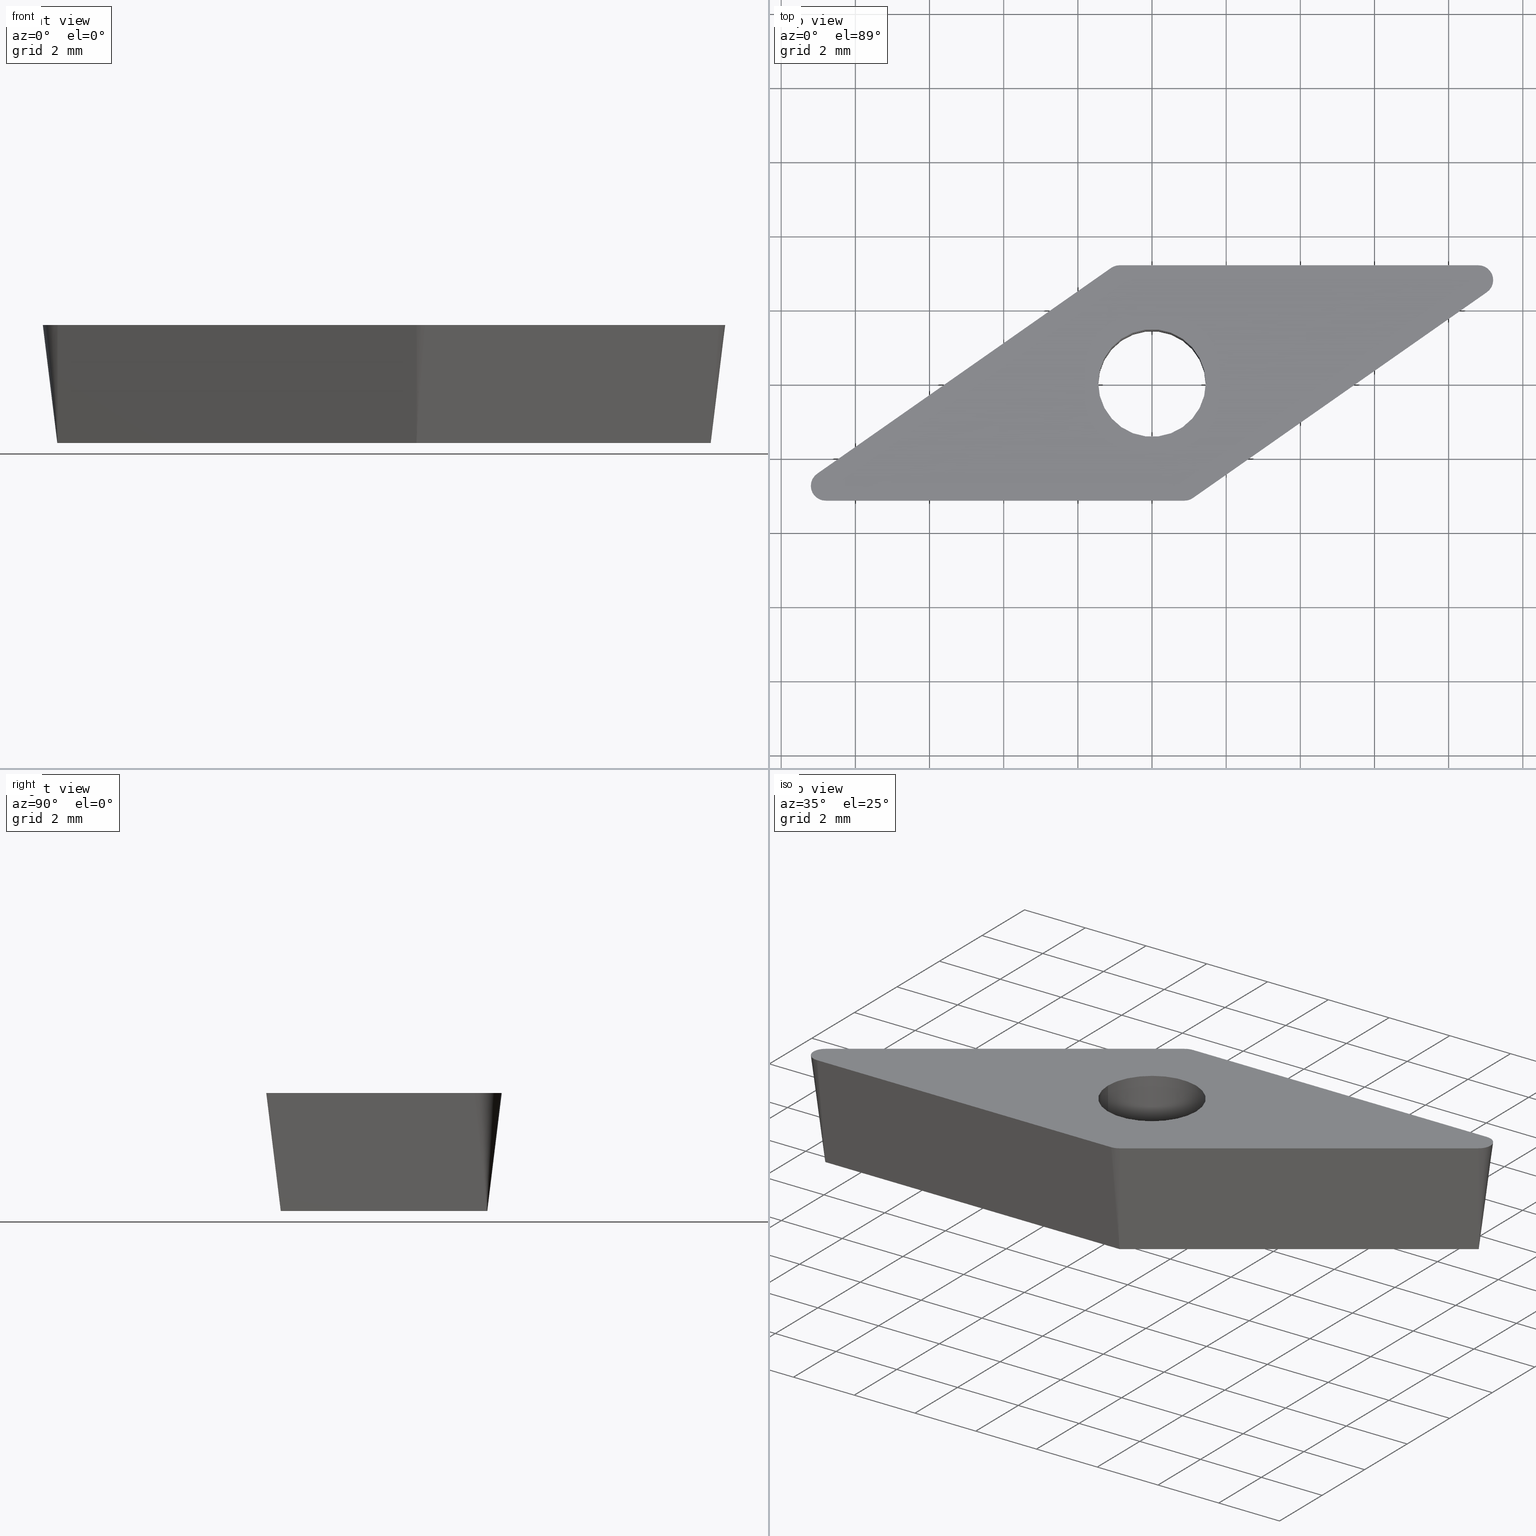
[diagram: canonical four-view strip — front | top / right | iso, engineering-drawing reading convention]
A machine part, canonical four-view strip (front | top / right | iso — engineering-drawing reading convention). The complete STEP part file that produces these views, byte-faithful:
ISO-10303-21;
HEADER;
FILE_DESCRIPTION (( 'STEP AP214' ),
    '1' );
FILE_NAME ('VC.. 110304.step',
    '2017-03-30T12:57:34',
    ( '' ),
    ( '' ),
    'SwSTEP 2.0',
    'SolidWorks 2016',
    '' );
FILE_SCHEMA (( 'AUTOMOTIVE_DESIGN' ));
ENDSEC;

DATA;
#1 =( NAMED_UNIT ( * ) PLANE_ANGLE_UNIT ( ) SI_UNIT ( $, .RADIAN. ) );
#2 = APPLICATION_CONTEXT ( 'automotive_design' ) ;
#3 =( LENGTH_UNIT ( ) NAMED_UNIT ( * ) SI_UNIT ( .MILLI., .METRE. ) );
#4 = SURFACE_STYLE_USAGE ( .BOTH. , #6 ) ;
#5 = VERTEX_POINT ( 'NONE', #285 ) ;
#6 = SURFACE_SIDE_STYLE ('',( #169 ) ) ;
#7 = FILL_AREA_STYLE ('',( #8 ) ) ;
#8 = FILL_AREA_STYLE_COLOUR ( '', #294 ) ;
#9 = ORIENTED_EDGE ( 'NONE', *, *, #356, .F. ) ;
#10 = DIRECTION ( 'NONE',  ( 0.06990138369076597000, -0.09982952178648431300, -0.9925461516413219800 ) ) ;
#11 =( NAMED_UNIT ( * ) SI_UNIT ( $, .STERADIAN. ) SOLID_ANGLE_UNIT ( ) );
#12 =( NAMED_UNIT ( * ) PLANE_ANGLE_UNIT ( ) SI_UNIT ( $, .RADIAN. ) );
#13 = ORIENTED_EDGE ( 'NONE', *, *, #461, .T. ) ;
#14 =( LENGTH_UNIT ( ) NAMED_UNIT ( * ) SI_UNIT ( .MILLI., .METRE. ) );
#15 = CARTESIAN_POINT ( 'NONE',  ( 0.0000000000000000000, 0.0000000000000000000, 0.0000000000000000000 ) ) ;
#16 = CARTESIAN_POINT ( 'NONE',  ( 0.8749541391391757500, -2.784545096328762300, -3.180000000000000200 ) ) ;
#17 = ORIENTED_EDGE ( 'NONE', *, *, #464, .F. ) ;
#18 = DIRECTION ( 'NONE',  ( 1.000000000000000000, 0.0000000000000000000, 0.0000000000000000000 ) ) ;
#19 = CARTESIAN_POINT ( 'NONE',  ( -2.350422432759885300, -2.784545096328762300, -3.180000000000000200 ) ) ;
#20 = VECTOR ( 'NONE', #267, 1000.000000000000000 ) ;
#21 = ORIENTED_EDGE ( 'NONE', *, *, #251, .T. ) ;
#22 = EDGE_CURVE ( 'NONE', #170, #138, #217, .T. ) ;
#23 = ORIENTED_EDGE ( 'NONE', *, *, #485, .F. ) ;
#24 = DIRECTION ( 'NONE',  ( 0.0000000000000000000, 0.0000000000000000000, -1.000000000000000000 ) ) ;
#25 = VERTEX_POINT ( 'NONE', #323 ) ;
#26 = ORIENTED_EDGE ( 'NONE', *, *, #477, .T. ) ;
#27 = CARTESIAN_POINT ( 'NONE',  ( 6.388532338624131100, 0.5973391822863098900, 0.0000000000000000000 ) ) ;
#28 = ORIENTED_EDGE ( 'NONE', *, *, #428, .T. ) ;
#29 =( NAMED_UNIT ( * ) SI_UNIT ( $, .STERADIAN. ) SOLID_ANGLE_UNIT ( ) );
#30 = CARTESIAN_POINT ( 'NONE',  ( 8.801175576557993100, 3.175000000000002000, 0.0000000000000000000 ) ) ;
#31 = VERTEX_POINT ( 'NONE', #266 ) ;
#32 = VERTEX_POINT ( 'NONE', #30 ) ;
#33 = CARTESIAN_POINT ( 'NONE',  ( -6.119785459984298000, -0.9811495013339721600, -3.815999999999999800 ) ) ;
#34 = ORIENTED_EDGE ( 'NONE', *, *, #355, .F. ) ;
#35 = CARTESIAN_POINT ( 'NONE',  ( -3.477711647505219000, 0.8688504986572684900, -3.815999999999999800 ) ) ;
#36 = ORIENTED_EDGE ( 'NONE', *, *, #434, .F. ) ;
#37 = CARTESIAN_POINT ( 'NONE',  ( 5.575799004658932700, 2.706454115594517000, -3.815999999999999800 ) ) ;
#38 = UNCERTAINTY_MEASURE_WITH_UNIT (LENGTH_MEASURE( 1.000000000000000100E-005 ), #275, 'distance_accuracy_value', 'NONE');
#39 = ORIENTED_EDGE ( 'NONE', *, *, #352, .T. ) ;
#40 = ORIENTED_EDGE ( 'NONE', *, *, #435, .T. ) ;
#41 = CARTESIAN_POINT ( 'NONE',  ( 0.0000000000000000000, 0.0000000000000000000, -3.180000000000000200 ) ) ;
#42 = EDGE_LOOP ( 'NONE', ( #183, #320, #185, #154 ) ) ;
#43 = DIRECTION ( 'NONE',  ( 1.000000000000000000, 0.0000000000000000000, 0.0000000000000000000 ) ) ;
#44 = PRESENTATION_STYLE_ASSIGNMENT (( #4 ) ) ;
#45 = AXIS2_PLACEMENT_3D ( 'NONE', #252, #134, #145 ) ;
#46 = DIRECTION ( 'NONE',  ( -0.0000000000000000000, -0.0000000000000000000, 1.000000000000000000 ) ) ;
#47 = CARTESIAN_POINT ( 'NONE',  ( 0.8749541391391761900, -2.774999999999999500, 0.0000000000000000000 ) ) ;
#48 = ORIENTED_EDGE ( 'NONE', *, *, #204, .T. ) ;
#49 = DIRECTION ( 'NONE',  ( -0.0000000000000000000, -0.0000000000000000000, 1.000000000000000000 ) ) ;
#50 = VERTEX_POINT ( 'NONE', #100 ) ;
#51 = ORIENTED_EDGE ( 'NONE', *, *, #483, .T. ) ;
#52 = DIRECTION ( 'NONE',  ( 0.0000000000000000000, 0.0000000000000000000, -1.000000000000000000 ) ) ;
#53 = CARTESIAN_POINT ( 'NONE',  ( 8.801175576557994900, 2.775000000000001700, -3.180000000000000200 ) ) ;
#54 = ORIENTED_EDGE ( 'NONE', *, *, #346, .T. ) ;
#55 = CARTESIAN_POINT ( 'NONE',  ( 6.164576606420595800, 0.9171811148312683000, -3.179999999999999700 ) ) ;
#56 = ORIENTED_EDGE ( 'NONE', *, *, #438, .T. ) ;
#57 = DIRECTION ( 'NONE',  ( 0.0000000000000000000, 0.0000000000000000000, -1.000000000000000000 ) ) ;
#58 = AXIS2_PLACEMENT_3D ( 'NONE', #289, #347, #345 ) ;
#59 = DIRECTION ( 'NONE',  ( -1.000000000000000000, 0.0000000000000000000, 0.0000000000000000000 ) ) ;
#60 = DIRECTION ( 'NONE',  ( -1.000000000000000000, 0.0000000000000000000, 0.0000000000000000000 ) ) ;
#61 = VERTEX_POINT ( 'NONE', #369 ) ;
#62 = DIRECTION ( 'NONE',  ( 0.0000000000000000000, 0.0000000000000000000, -1.000000000000000000 ) ) ;
#63 = ORIENTED_EDGE ( 'NONE', *, *, #387, .T. ) ;
#64 = CARTESIAN_POINT ( 'NONE',  ( -6.388532338628208700, -0.5973391822804898800, 0.0000000000000000000 ) ) ;
#65 = EDGE_CURVE ( 'NONE', #199, #25, #244, .T. ) ;
#66 = EDGE_LOOP ( 'NONE', ( #39, #40, #48, #51, #54, #56, #63, #68, #73 ) ) ;
#67 = DIRECTION ( 'NONE',  ( -1.000000000000000000, 0.0000000000000000000, 0.0000000000000000000 ) ) ;
#68 = ORIENTED_EDGE ( 'NONE', *, *, #110, .T. ) ;
#69 = DIRECTION ( 'NONE',  ( -1.000000000000000000, 0.0000000000000000000, 0.0000000000000000000 ) ) ;
#70 = DIRECTION ( 'NONE',  ( 2.864399321849623000E-017, -0.1218693434051477400, -0.9925461516413219800 ) ) ;
#71 = CARTESIAN_POINT ( 'NONE',  ( 0.0000000000000000000, 0.0000000000000000000, -3.180000000000000200 ) ) ;
#72 = CARTESIAN_POINT ( 'NONE',  ( -1.104384713679592800, 3.102660817715595400, 0.0000000000000000000 ) ) ;
#73 = ORIENTED_EDGE ( 'NONE', *, *, #415, .T. ) ;
#74 = CARTESIAN_POINT ( 'NONE',  ( 3.746458526155779900, -1.252660817720223400, 0.0000000000000000000 ) ) ;
#75 = ORIENTED_EDGE ( 'NONE', *, *, #414, .F. ) ;
#76 = ORIENTED_EDGE ( 'NONE', *, *, #458, .F. ) ;
#77 = CARTESIAN_POINT ( 'NONE',  ( 3.522502793952240600, -0.9328188851752681200, -3.179999999999999700 ) ) ;
#78 = ORIENTED_EDGE ( 'NONE', *, *, #312, .T. ) ;
#79 = DIRECTION ( 'NONE',  ( 0.0000000000000000000, 0.0000000000000000000, -1.000000000000000000 ) ) ;
#80 = CARTESIAN_POINT ( 'NONE',  ( 0.0000000000000000000, 0.0000000000000000000, -3.180000000000000200 ) ) ;
#81 = CARTESIAN_POINT ( 'NONE',  ( -3.746458526149465000, 1.252660817711216000, 0.0000000000000000000 ) ) ;
#82 = ORIENTED_EDGE ( 'NONE', *, *, #432, .T. ) ;
#83 = AXIS2_PLACEMENT_3D ( 'NONE', #71, #57, #257 ) ;
#84 = ORIENTED_EDGE ( 'NONE', *, *, #355, .T. ) ;
#85 = CARTESIAN_POINT ( 'NONE',  ( -3.522502793945926600, 0.9328188851662595500, -3.180000000000000600 ) ) ;
#86 = EDGE_LOOP ( 'NONE', ( #180, #225, #276, #368 ) ) ;
#87 = CARTESIAN_POINT ( 'NONE',  ( 8.806650418894873800, 2.767181114829359700, -3.180000000000000200 ) ) ;
#88 = DIRECTION ( 'NONE',  ( -0.0000000000000000000, -0.0000000000000000000, 1.000000000000000000 ) ) ;
#89 = AXIS2_PLACEMENT_3D ( 'NONE', #367, #366, #361 ) ;
#90 = CARTESIAN_POINT ( 'NONE',  ( 0.8749541391391761900, -2.774999999999999500, -3.180000000000000200 ) ) ;
#91 = AXIS2_PLACEMENT_3D ( 'NONE', #321, #88, #439 ) ;
#92 = DIRECTION ( 'NONE',  ( -1.000000000000000000, 0.0000000000000000000, 0.0000000000000000000 ) ) ;
#93 = CARTESIAN_POINT ( 'NONE',  ( -9.030606151098412600, -2.447339182284403100, 0.0000000000000000000 ) ) ;
#94 = DIRECTION ( 'NONE',  ( -1.000000000000000000, 0.0000000000000000000, 0.0000000000000000000 ) ) ;
#95 = CARTESIAN_POINT ( 'NONE',  ( -5.575799004658937200, -2.784545096328763700, -3.180000000000000200 ) ) ;
#96 = ORIENTED_EDGE ( 'NONE', *, *, #446, .F. ) ;
#97 = EDGE_LOOP ( 'NONE', ( #140, #141, #148, #151 ) ) ;
#98 = PRESENTATION_LAYER_ASSIGNMENT (  '', '', ( #115 ) ) ;
#99 = CARTESIAN_POINT ( 'NONE',  ( 3.477711647511532600, -0.8688504986662770600, -3.815999999999999800 ) ) ;
#100 = CARTESIAN_POINT ( 'NONE',  ( -0.8749541391391708600, 2.784545096328762300, -3.180000000000000200 ) ) ;
#101 = CARTESIAN_POINT ( 'NONE',  ( 2.350422432759891000, 2.706454115594514800, -3.815999999999999800 ) ) ;
#102 = ORIENTED_EDGE ( 'NONE', *, *, #412, .F. ) ;
#103 = VERTEX_POINT ( 'NONE', #119 ) ;
#104 = CARTESIAN_POINT ( 'NONE',  ( 8.806650418894873800, 2.767181114829359700, -3.180000000000000200 ) ) ;
#105 = ORIENTED_EDGE ( 'NONE', *, *, #435, .F. ) ;
#106 = CARTESIAN_POINT ( 'NONE',  ( 0.8804289814760549700, -2.782818885170637500, -3.180000000000000200 ) ) ;
#107 = ORIENTED_EDGE ( 'NONE', *, *, #358, .F. ) ;
#108 = ORIENTED_EDGE ( 'NONE', *, *, #251, .F. ) ;
#109 = DIRECTION ( 'NONE',  ( 1.000000000000000000, 0.0000000000000000000, 0.0000000000000000000 ) ) ;
#110 = EDGE_CURVE ( 'NONE', #164, #135, #478, .T. ) ;
#111 = DIRECTION ( 'NONE',  ( 0.0000000000000000000, 0.0000000000000000000, 1.000000000000000000 ) ) ;
#112 = ORIENTED_EDGE ( 'NONE', *, *, #484, .F. ) ;
#113 = ORIENTED_EDGE ( 'NONE', *, *, #485, .T. ) ;
#114 = ORIENTED_EDGE ( 'NONE', *, *, #387, .F. ) ;
#115 = STYLED_ITEM ( 'NONE', ( #445 ), #410 ) ;
#116 = ORIENTED_EDGE ( 'NONE', *, *, #431, .F. ) ;
#117 = CARTESIAN_POINT ( 'NONE',  ( -2.350422432759885300, -3.174999999999999800, 0.0000000000000000000 ) ) ;
#118 = CARTESIAN_POINT ( 'NONE',  ( 0.8749541391391757500, -3.174999999999999800, 0.0000000000000000000 ) ) ;
#119 = CARTESIAN_POINT ( 'NONE',  ( -0.8749541391391701900, 3.174999999999999800, 0.0000000000000000000 ) ) ;
#120 = DIRECTION ( 'NONE',  ( -1.000000000000000000, -3.252606517456518800E-015, 0.0000000000000000000 ) ) ;
#121 = EDGE_LOOP ( 'NONE', ( #113, #335, #411, #430 ) ) ;
#122 = ORIENTED_EDGE ( 'NONE', *, *, #464, .T. ) ;
#123 = CARTESIAN_POINT ( 'NONE',  ( -0.8749541391391700800, 2.774999999999999500, -3.180000000000000200 ) ) ;
#124 = ORIENTED_EDGE ( 'NONE', *, *, #461, .F. ) ;
#125 = ORIENTED_EDGE ( 'NONE', *, *, #301, .F. ) ;
#126 = FACE_OUTER_BOUND ( 'NONE', #42, .T. ) ;
#127 = EDGE_LOOP ( 'NONE', ( #209, #246 ) ) ;
#128 = ORIENTED_EDGE ( 'NONE', *, *, #415, .F. ) ;
#129 = CARTESIAN_POINT ( 'NONE',  ( 10.06981349750329200, 3.175000000000002500, 0.0000000000000000000 ) ) ;
#130 = AXIS2_PLACEMENT_3D ( 'NONE', #219, #218, #171 ) ;
#131 = VERTEX_POINT ( 'NONE', #207 ) ;
#132 = DIRECTION ( 'NONE',  ( 1.000000000000000000, 0.0000000000000000000, 0.0000000000000000000 ) ) ;
#133 = AXIS2_PLACEMENT_3D ( 'NONE', #223, #188, #187 ) ;
#134 = DIRECTION ( 'NONE',  ( -0.0000000000000000000, -0.0000000000000000000, 1.000000000000000000 ) ) ;
#135 = VERTEX_POINT ( 'NONE', #203 ) ;
#136 = DIRECTION ( 'NONE',  ( -1.432199660924811500E-017, 0.1218693434051477400, -0.9925461516413219800 ) ) ;
#137 = ORIENTED_EDGE ( 'NONE', *, *, #375, .F. ) ;
#138 = VERTEX_POINT ( 'NONE', #373 ) ;
#139 = DIRECTION ( 'NONE',  ( -0.0000000000000000000, -0.0000000000000000000, 1.000000000000000000 ) ) ;
#140 = ORIENTED_EDGE ( 'NONE', *, *, #349, .F. ) ;
#141 = ORIENTED_EDGE ( 'NONE', *, *, #477, .F. ) ;
#142 = DIRECTION ( 'NONE',  ( 0.0000000000000000000, 0.0000000000000000000, -1.000000000000000000 ) ) ;
#143 = CARTESIAN_POINT ( 'NONE',  ( -8.801175576557996600, -2.775000000000000800, -3.180000000000000200 ) ) ;
#144 =( GEOMETRIC_REPRESENTATION_CONTEXT ( 3 ) GLOBAL_UNCERTAINTY_ASSIGNED_CONTEXT ( ( #38 ) ) GLOBAL_UNIT_ASSIGNED_CONTEXT ( ( #275, #273, #271 ) ) REPRESENTATION_CONTEXT ( 'NONE', 'WORKASPACE' ) );
#145 = DIRECTION ( 'NONE',  ( -1.000000000000000000, 1.084202172485504400E-015, 0.0000000000000000000 ) ) ;
#146 = DIRECTION ( 'NONE',  ( -1.000000000000000000, 0.0000000000000000000, 0.0000000000000000000 ) ) ;
#147 = DIRECTION ( 'NONE',  ( -0.0000000000000000000, -0.0000000000000000000, 1.000000000000000000 ) ) ;
#148 = ORIENTED_EDGE ( 'NONE', *, *, #22, .F. ) ;
#149 = CARTESIAN_POINT ( 'NONE',  ( -0.8749541391391700800, 2.774999999999999500, 0.0000000000000000000 ) ) ;
#150 = CARTESIAN_POINT ( 'NONE',  ( 9.030606151098410800, 2.447339182284403100, 0.0000000000000000000 ) ) ;
#151 = ORIENTED_EDGE ( 'NONE', *, *, #346, .F. ) ;
#152 = CARTESIAN_POINT ( 'NONE',  ( 0.8356378350353475000, -2.718850498661646400, -3.815999999999999800 ) ) ;
#153 = VERTEX_POINT ( 'NONE', #398 ) ;
#154 = ORIENTED_EDGE ( 'NONE', *, *, #65, .F. ) ;
#155 = CONICAL_SURFACE ( 'NONE', #284, 0.3999999999999993000, 0.1221730476396033400 ) ;
#156 = EDGE_LOOP ( 'NONE', ( #75, #76, #82, #84 ) ) ;
#157 = MECHANICAL_DESIGN_GEOMETRIC_PRESENTATION_REPRESENTATION (  '', ( #115 ), #144 ) ;
#158 = VERTEX_POINT ( 'NONE', #401 ) ;
#159 = DIRECTION ( 'NONE',  ( -1.000000000000000000, 0.0000000000000000000, 0.0000000000000000000 ) ) ;
#160 = CARTESIAN_POINT ( 'NONE',  ( 0.0000000000000000000, 0.0000000000000000000, 0.0000000000000000000 ) ) ;
#161 = CARTESIAN_POINT ( 'NONE',  ( -8.801175576557996600, -2.775000000000000800, 0.0000000000000000000 ) ) ;
#162 = CARTESIAN_POINT ( 'NONE',  ( 5.575799004658932700, 2.784545096328764600, -3.180000000000000200 ) ) ;
#163 = VECTOR ( 'NONE', #300, 1000.000000000000100 ) ;
#164 = VERTEX_POINT ( 'NONE', #402 ) ;
#165 = ORIENTED_EDGE ( 'NONE', *, *, #65, .T. ) ;
#166 = CARTESIAN_POINT ( 'NONE',  ( 0.8749541391391757500, -3.174999999999999800, 0.0000000000000000000 ) ) ;
#167 = DIRECTION ( 'NONE',  ( -0.0000000000000000000, -0.0000000000000000000, 1.000000000000000000 ) ) ;
#168 = AXIS2_PLACEMENT_3D ( 'NONE', #231, #49, #146 ) ;
#169 = SURFACE_STYLE_FILL_AREA ( #7 ) ;
#170 = VERTEX_POINT ( 'NONE', #377 ) ;
#171 = DIRECTION ( 'NONE',  ( 1.000000000000000000, 0.0000000000000000000, 0.0000000000000000000 ) ) ;
#172 = CARTESIAN_POINT ( 'NONE',  ( -0.8804289814760550800, 2.782818885170638800, -3.180000000000000200 ) ) ;
#173 = EDGE_LOOP ( 'NONE', ( #449, #391, #78, #165 ) ) ;
#174 = CARTESIAN_POINT ( 'NONE',  ( 0.0000000000000000000, 0.0000000000000000000, 0.0000000000000000000 ) ) ;
#175 = CLOSED_SHELL ( 'NONE', ( #256, #475, #467, #249, #253, #381, #281, #480, #474, #476, #472, #388, #479 ) ) ;
#176 = EDGE_LOOP ( 'NONE', ( #405, #455, #9, #13, #17, #21, #23, #26, #28 ) ) ;
#177 = CARTESIAN_POINT ( 'NONE',  ( -8.801175576557996600, -3.175000000000001200, 0.0000000000000000000 ) ) ;
#178 = DIRECTION ( 'NONE',  ( 1.000000000000000000, 1.175192727644018400E-016, -0.0000000000000000000 ) ) ;
#179 = AXIS2_PLACEMENT_3D ( 'NONE', #123, #79, #92 ) ;
#180 = ORIENTED_EDGE ( 'NONE', *, *, #420, .F. ) ;
#181 = EDGE_LOOP ( 'NONE', ( #296, #260, #338, #425 ) ) ;
#182 = CIRCLE ( 'NONE', #270, 0.3999999999999993000 ) ;
#183 = ORIENTED_EDGE ( 'NONE', *, *, #428, .F. ) ;
#184 = DIRECTION ( 'NONE',  ( 1.000000000000000000, 0.0000000000000000000, 0.0000000000000000000 ) ) ;
#185 = ORIENTED_EDGE ( 'NONE', *, *, #483, .F. ) ;
#186 = DIRECTION ( 'NONE',  ( 0.0000000000000000000, 0.0000000000000000000, 1.000000000000000000 ) ) ;
#187 = DIRECTION ( 'NONE',  ( -1.000000000000000000, 0.0000000000000000000, 0.0000000000000000000 ) ) ;
#188 = DIRECTION ( 'NONE',  ( -0.0000000000000000000, -0.0000000000000000000, 1.000000000000000000 ) ) ;
#189 = VERTEX_POINT ( 'NONE', #390 ) ;
#190 = VERTEX_POINT ( 'NONE', #406 ) ;
#191 = CARTESIAN_POINT ( 'NONE',  ( -0.8749541391391700800, 2.774999999999999500, 0.0000000000000000000 ) ) ;
#192 = CARTESIAN_POINT ( 'NONE',  ( 1.001073654690764100, -3.174999999999999800, 0.0000000000000000000 ) ) ;
#193 = EDGE_LOOP ( 'NONE', ( #108, #112, #114, #116 ) ) ;
#194 = CONICAL_SURFACE ( 'NONE', #288, 0.3999999999999999700, 0.1221730476396033400 ) ;
#195 = VERTEX_POINT ( 'NONE', #423 ) ;
#196 = EDGE_LOOP ( 'NONE', ( #96, #102, #105, #107 ) ) ;
#197 = CONICAL_SURFACE ( 'NONE', #91, 0.3999999999999993000, 0.1221730476396033400 ) ;
#198 = AXIS2_PLACEMENT_3D ( 'NONE', #149, #147, #94 ) ;
#199 = VERTEX_POINT ( 'NONE', #404 ) ;
#200 = EDGE_LOOP ( 'NONE', ( #328, #334, #122, #379 ) ) ;
#201 = VERTEX_POINT ( 'NONE', #172 ) ;
#202 = DIRECTION ( 'NONE',  ( 0.0000000000000000000, 0.0000000000000000000, 1.000000000000000000 ) ) ;
#203 = CARTESIAN_POINT ( 'NONE',  ( 9.030606151098410800, 2.447339182284403500, 0.0000000000000000000 ) ) ;
#204 = EDGE_CURVE ( 'NONE', #61, #25, #213, .T. ) ;
#205 = DIRECTION ( 'NONE',  ( -0.06990138369076597000, 0.09982952178648431300, 0.9925461516413219800 ) ) ;
#206 = VERTEX_POINT ( 'NONE', #104 ) ;
#207 = CARTESIAN_POINT ( 'NONE',  ( 1.450000000000000000, 0.0000000000000000000, -3.180000000000000200 ) ) ;
#208 = CARTESIAN_POINT ( 'NONE',  ( -8.801175576557996600, -3.175000000000001200, 0.0000000000000000000 ) ) ;
#209 = ORIENTED_EDGE ( 'NONE', *, *, #458, .T. ) ;
#210 = EDGE_LOOP ( 'NONE', ( #124, #125, #128, #137 ) ) ;
#211 = CARTESIAN_POINT ( 'NONE',  ( 8.801175576557993100, 2.706454115594517000, -3.815999999999999800 ) ) ;
#212 = EDGE_LOOP ( 'NONE', ( #34, #36 ) ) ;
#213 = LINE ( 'NONE', #306, #163 ) ;
#214 = AXIS2_PLACEMENT_3D ( 'NONE', #47, #46, #69 ) ;
#215 = CARTESIAN_POINT ( 'NONE',  ( -8.761859272454168800, -2.831149501338350700, -3.815999999999999800 ) ) ;
#216 = CARTESIAN_POINT ( 'NONE',  ( 1.450000000000000000, 0.0000000000000000000, -3.180000000000000200 ) ) ;
#217 = LINE ( 'NONE', #177, #255 ) ;
#218 = DIRECTION ( 'NONE',  ( 0.0000000000000000000, 0.0000000000000000000, 1.000000000000000000 ) ) ;
#219 = CARTESIAN_POINT ( 'NONE',  ( 0.0000000000000000000, 0.0000000000000000000, -3.180000000000000200 ) ) ;
#220 = B_SPLINE_SURFACE_WITH_KNOTS ( 'NONE', 1, 3, ( 
 ( #447, #395, #450, #448 ),
 ( #211, #37, #101, #471 ) ),
 .UNSPECIFIED., .F., .F., .F.,
 ( 2, 2 ),
 ( 4, 4 ),
 ( 0.0000000000000000000, 1.000000000000000000 ),
 ( -0.009802249231248758700, -0.0001261195155515939900 ),
 .UNSPECIFIED. ) ;
#221 = AXIS2_PLACEMENT_3D ( 'NONE', #53, #52, #59 ) ;
#222 = DIRECTION ( 'NONE',  ( -1.000000000000000000, 0.0000000000000000000, 0.0000000000000000000 ) ) ;
#223 = CARTESIAN_POINT ( 'NONE',  ( 8.801175576557994900, 2.775000000000001700, 0.0000000000000000000 ) ) ;
#224 = AXIS2_PLACEMENT_3D ( 'NONE', #80, #111, #109 ) ;
#225 = ORIENTED_EDGE ( 'NONE', *, *, #414, .T. ) ;
#226 = CARTESIAN_POINT ( 'NONE',  ( -9.030606151098412600, -2.447339182284403100, 0.0000000000000000000 ) ) ;
#227 = DIRECTION ( 'NONE',  ( 1.432199660924811500E-017, -0.1218693434051477400, 0.9925461516413219800 ) ) ;
#228 = CARTESIAN_POINT ( 'NONE',  ( -0.8356378350353475000, 2.718850498661647700, -3.815999999999999800 ) ) ;
#229 = FACE_OUTER_BOUND ( 'NONE', #66, .T. ) ;
#230 = PRODUCT_DEFINITION_SHAPE ( 'NONE', 'NONE',  #326 ) ;
#231 = CARTESIAN_POINT ( 'NONE',  ( 8.801175576557994900, 2.775000000000001700, 0.0000000000000000000 ) ) ;
#232 = DIRECTION ( 'NONE',  ( 0.0000000000000000000, 0.0000000000000000000, 1.000000000000000000 ) ) ;
#233 = CIRCLE ( 'NONE', #287, 0.009545096328762367500 ) ;
#234 = VECTOR ( 'NONE', #70, 1000.000000000000000 ) ;
#235 = PLANE ( 'NONE',  #83 ) ;
#236 = DIRECTION ( 'NONE',  ( 0.0000000000000000000, 0.0000000000000000000, 1.000000000000000000 ) ) ;
#237 = DIRECTION ( 'NONE',  ( 0.0000000000000000000, 0.0000000000000000000, 1.000000000000000000 ) ) ;
#238 = CONICAL_SURFACE ( 'NONE', #214, 0.4000000000000000200, 0.1221730476396033400 ) ;
#239 = CARTESIAN_POINT ( 'NONE',  ( -1.450000000000000000, 1.775737858763661700E-016, -3.180000000000000200 ) ) ;
#240 = AXIS2_PLACEMENT_3D ( 'NONE', #174, #186, #184 ) ;
#241 = CARTESIAN_POINT ( 'NONE',  ( 1.450000000000000000, 0.0000000000000000000, 0.0000000000000000000 ) ) ;
#242 = CARTESIAN_POINT ( 'NONE',  ( -5.575799004658937200, -3.175000000000001200, 0.0000000000000000000 ) ) ;
#243 = CARTESIAN_POINT ( 'NONE',  ( -8.801175576557996600, -2.706454115594516100, -3.815999999999999800 ) ) ;
#244 = LINE ( 'NONE', #93, #327 ) ;
#245 = APPLICATION_PROTOCOL_DEFINITION ( 'draft international standard', 'automotive_design', 1998, #292 ) ;
#246 = ORIENTED_EDGE ( 'NONE', *, *, #420, .T. ) ;
#247 = CARTESIAN_POINT ( 'NONE',  ( -0.8749541391391708600, 2.784545096328762300, -3.180000000000000200 ) ) ;
#248 = CARTESIAN_POINT ( 'NONE',  ( -0.8804289814760550800, 2.782818885170638800, -3.180000000000000200 ) ) ;
#249 = ADVANCED_FACE ( 'NONE', ( #279 ), #220, .T. ) ;
#250 = AXIS2_PLACEMENT_3D ( 'NONE', #143, #142, #159 ) ;
#251 = EDGE_CURVE ( 'NONE', #190, #158, #378, .T. ) ;
#252 = CARTESIAN_POINT ( 'NONE',  ( 0.8749541391391761900, -2.774999999999999500, 0.0000000000000000000 ) ) ;
#253 = ADVANCED_FACE ( 'NONE', ( #413 ), #460, .T. ) ;
#254 = AXIS2_PLACEMENT_3D ( 'NONE', #258, #236, #18 ) ;
#255 = VECTOR ( 'NONE', #136, 1000.000000000000000 ) ;
#256 = ADVANCED_FACE ( 'NONE', ( #126 ), #197, .T. ) ;
#257 = DIRECTION ( 'NONE',  ( -1.000000000000000000, 0.0000000000000000000, -0.0000000000000000000 ) ) ;
#258 = CARTESIAN_POINT ( 'NONE',  ( 0.0000000000000000000, 0.0000000000000000000, -3.180000000000000200 ) ) ;
#259 = APPLICATION_PROTOCOL_DEFINITION ( 'draft international standard', 'automotive_design', 1998, #437 ) ;
#260 = ORIENTED_EDGE ( 'NONE', *, *, #358, .T. ) ;
#261 = AXIS2_PLACEMENT_3D ( 'NONE', #41, #232, #43 ) ;
#262 = CARTESIAN_POINT ( 'NONE',  ( -5.575799004658937200, -2.706454115594516100, -3.815999999999999800 ) ) ;
#263 = CARTESIAN_POINT ( 'NONE',  ( -2.350422432759885300, -2.706454115594514800, -3.815999999999999800 ) ) ;
#264 = CARTESIAN_POINT ( 'NONE',  ( 0.8749541391391756400, -2.706454115594514800, -3.815999999999999800 ) ) ;
#265 = AXIS2_PLACEMENT_3D ( 'NONE', #463, #62, #316 ) ;
#266 = CARTESIAN_POINT ( 'NONE',  ( -9.201175576557997000, -2.775000000000000800, 0.0000000000000000000 ) ) ;
#267 = DIRECTION ( 'NONE',  ( 0.8191520442889946900, 0.5735764363510419400, -0.0000000000000000000 ) ) ;
#268 = CARTESIAN_POINT ( 'NONE',  ( -1.104384713679592800, 3.102660817715595400, 0.0000000000000000000 ) ) ;
#269 = LINE ( 'NONE', #341, #286 ) ;
#270 = AXIS2_PLACEMENT_3D ( 'NONE', #161, #167, #120 ) ;
#271 =( NAMED_UNIT ( * ) SI_UNIT ( $, .STERADIAN. ) SOLID_ANGLE_UNIT ( ) );
#272 = FACE_OUTER_BOUND ( 'NONE', #86, .T. ) ;
#273 =( NAMED_UNIT ( * ) PLANE_ANGLE_UNIT ( ) SI_UNIT ( $, .RADIAN. ) );
#274 = CYLINDRICAL_SURFACE ( 'NONE', #254, 1.450000000000000000 ) ;
#275 =( LENGTH_UNIT ( ) NAMED_UNIT ( * ) SI_UNIT ( .MILLI., .METRE. ) );
#276 = ORIENTED_EDGE ( 'NONE', *, *, #434, .T. ) ;
#277 = SURFACE_STYLE_USAGE ( .BOTH. , #278 ) ;
#278 = SURFACE_SIDE_STYLE ('',( #441 ) ) ;
#279 = FACE_OUTER_BOUND ( 'NONE', #181, .T. ) ;
#280 = FILL_AREA_STYLE ('',( #282 ) ) ;
#281 = ADVANCED_FACE ( 'NONE', ( #333, #363 ), #235, .T. ) ;
#282 = FILL_AREA_STYLE_COLOUR ( '', #443 ) ;
#283 = CARTESIAN_POINT ( 'NONE',  ( 9.030606151098410800, 2.447339182284403100, 0.0000000000000000000 ) ) ;
#284 = AXIS2_PLACEMENT_3D ( 'NONE', #453, #452, #60 ) ;
#285 = CARTESIAN_POINT ( 'NONE',  ( 0.8749541391391761900, -3.174999999999999800, 0.0000000000000000000 ) ) ;
#286 = VECTOR ( 'NONE', #319, 1000.000000000000000 ) ;
#287 = AXIS2_PLACEMENT_3D ( 'NONE', #454, #330, #456 ) ;
#288 = AXIS2_PLACEMENT_3D ( 'NONE', #191, #139, #222 ) ;
#289 = CARTESIAN_POINT ( 'NONE',  ( 0.0000000000000000000, 0.0000000000000000000, 0.0000000000000000000 ) ) ;
#290 = FACE_OUTER_BOUND ( 'NONE', #97, .T. ) ;
#291 = PRESENTATION_LAYER_ASSIGNMENT (  '', '', ( #302 ) ) ;
#292 = APPLICATION_CONTEXT ( 'automotive_design' ) ;
#293 = VECTOR ( 'NONE', #307, 1000.000000000000000 ) ;
#294 = COLOUR_RGB ( '',0.7960784313725489700, 0.8235294117647058400, 0.9372549019607843100 ) ;
#295 = DIRECTION ( 'NONE',  ( 0.0000000000000000000, 0.0000000000000000000, 1.000000000000000000 ) ) ;
#296 = ORIENTED_EDGE ( 'NONE', *, *, #356, .T. ) ;
#297 = FACE_BOUND ( 'NONE', #212, .T. ) ;
#298 = CARTESIAN_POINT ( 'NONE',  ( 8.801175576557993100, 2.784545096328764600, -3.180000000000000200 ) ) ;
#299 = FACE_OUTER_BOUND ( 'NONE', #156, .T. ) ;
#300 = DIRECTION ( 'NONE',  ( -0.8191520442889948000, -0.5735764363510417200, -0.0000000000000000000 ) ) ;
#301 = EDGE_CURVE ( 'NONE', #32, #153, #317, .T. ) ;
#302 = STYLED_ITEM ( 'NONE', ( #44 ), #364 ) ;
#303 = CARTESIAN_POINT ( 'NONE',  ( 2.350422432759891000, 2.784545096328762300, -3.180000000000000200 ) ) ;
#304 = CARTESIAN_POINT ( 'NONE',  ( -6.164576606424949600, -0.9171811148250583700, -3.180000000000000600 ) ) ;
#305 = AXIS2_PLACEMENT_3D ( 'NONE', #160, #444, #424 ) ;
#306 = CARTESIAN_POINT ( 'NONE',  ( -10.06981349750329400, -3.175000000000001200, 0.0000000000000000000 ) ) ;
#307 = DIRECTION ( 'NONE',  ( -0.1218693434051477400, 0.0000000000000000000, 0.9925461516413219800 ) ) ;
#308 = PRODUCT_DEFINITION_CONTEXT ( 'detailed design', #437, 'design' ) ;
#309 = CARTESIAN_POINT ( 'NONE',  ( -8.806650418894875500, -2.767181114829359700, -3.180000000000000200 ) ) ;
#310 = CARTESIAN_POINT ( 'NONE',  ( -9.201175576557997000, -2.775000000000000800, 0.0000000000000000000 ) ) ;
#311 = CARTESIAN_POINT ( 'NONE',  ( -0.8749541391391709700, 3.174999999999999800, 0.0000000000000000000 ) ) ;
#312 = EDGE_CURVE ( 'NONE', #201, #199, #436, .T. ) ;
#313 = B_SPLINE_CURVE_WITH_KNOTS ( 'NONE', 3,
 ( #342, #95, #19, #16 ),
 .UNSPECIFIED., .F., .F.,
 ( 4, 4 ),
 ( 0.0000000000000000000, 0.009676129715697173700 ),
 .UNSPECIFIED. ) ;
#314 = CARTESIAN_POINT ( 'NONE',  ( 6.119785459979888200, 0.9811495013402600200, -3.815999999999999800 ) ) ;
#315 = CARTESIAN_POINT ( 'NONE',  ( 8.761859272454165300, 2.831149501338350700, -3.815999999999999800 ) ) ;
#316 = DIRECTION ( 'NONE',  ( -1.000000000000000000, 0.0000000000000000000, -0.0000000000000000000 ) ) ;
#317 = LINE ( 'NONE', #331, #234 ) ;
#318 = PLANE ( 'NONE',  #265 ) ;
#319 = DIRECTION ( 'NONE',  ( -0.06990138369076601100, 0.09982952178648428500, -0.9925461516413219800 ) ) ;
#320 = ORIENTED_EDGE ( 'NONE', *, *, #349, .T. ) ;
#321 = CARTESIAN_POINT ( 'NONE',  ( -8.801175576557996600, -2.775000000000000800, 0.0000000000000000000 ) ) ;
#322 = CYLINDRICAL_SURFACE ( 'NONE', #261, 1.450000000000000000 ) ;
#323 = CARTESIAN_POINT ( 'NONE',  ( -9.030606151098412600, -2.447339182284403100, 0.0000000000000000000 ) ) ;
#324 = FACE_OUTER_BOUND ( 'NONE', #196, .T. ) ;
#325 = UNCERTAINTY_MEASURE_WITH_UNIT (LENGTH_MEASURE( 1.000000000000000100E-005 ), #3, 'distance_accuracy_value', 'NONE');
#326 = PRODUCT_DEFINITION ( 'UNKNOWN', '', #384, #357 ) ;
#327 = VECTOR ( 'NONE', #205, 1000.000000000000000 ) ;
#328 = ORIENTED_EDGE ( 'NONE', *, *, #110, .F. ) ;
#329 =( GEOMETRIC_REPRESENTATION_CONTEXT ( 3 ) GLOBAL_UNCERTAINTY_ASSIGNED_CONTEXT ( ( #325 ) ) GLOBAL_UNIT_ASSIGNED_CONTEXT ( ( #3, #1, #29 ) ) REPRESENTATION_CONTEXT ( 'NONE', 'WORKASPACE' ) );
#330 = DIRECTION ( 'NONE',  ( 0.0000000000000000000, 0.0000000000000000000, -1.000000000000000000 ) ) ;
#331 = CARTESIAN_POINT ( 'NONE',  ( 8.801175576557993100, 3.175000000000002000, 0.0000000000000000000 ) ) ;
#332 = MECHANICAL_DESIGN_GEOMETRIC_PRESENTATION_REPRESENTATION (  '', ( #302 ), #329 ) ;
#333 = FACE_BOUND ( 'NONE', #127, .T. ) ;
#334 = ORIENTED_EDGE ( 'NONE', *, *, #484, .T. ) ;
#335 = ORIENTED_EDGE ( 'NONE', *, *, #431, .T. ) ;
#336 =( GEOMETRIC_REPRESENTATION_CONTEXT ( 3 ) GLOBAL_UNCERTAINTY_ASSIGNED_CONTEXT ( ( #421 ) ) GLOBAL_UNIT_ASSIGNED_CONTEXT ( ( #14, #12, #11 ) ) REPRESENTATION_CONTEXT ( 'NONE', 'WORKASPACE' ) );
#337 = PRODUCT_DEFINITION_FORMATION_WITH_SPECIFIED_SOURCE ( 'ANY', '', #343, .NOT_KNOWN. ) ;
#338 = ORIENTED_EDGE ( 'NONE', *, *, #352, .F. ) ;
#339 = PRODUCT_CONTEXT ( 'NONE', #348, 'mechanical' ) ;
#340 = AXIS2_PLACEMENT_3D ( 'NONE', #90, #24, #67 ) ;
#341 = CARTESIAN_POINT ( 'NONE',  ( 1.104384713679592800, -3.102660817715594100, 0.0000000000000000000 ) ) ;
#342 = CARTESIAN_POINT ( 'NONE',  ( -8.801175576557996600, -2.784545096328763700, -3.180000000000000200 ) ) ;
#343 = PRODUCT ( 'VC.. 110304', 'VC.. 110304', '', ( #462 ) ) ;
#344 = DIRECTION ( 'NONE',  ( 0.06990138369076601100, -0.09982952178648428500, 0.9925461516413219800 ) ) ;
#345 = DIRECTION ( 'NONE',  ( 1.000000000000000000, 0.0000000000000000000, 0.0000000000000000000 ) ) ;
#346 = EDGE_CURVE ( 'NONE', #31, #170, #353, .T. ) ;
#347 = DIRECTION ( 'NONE',  ( 0.0000000000000000000, 0.0000000000000000000, 1.000000000000000000 ) ) ;
#348 = APPLICATION_CONTEXT ( 'automotive_design' ) ;
#349 = EDGE_CURVE ( 'NONE', #195, #31, #451, .T. ) ;
#350 = PRODUCT_DEFINITION ( 'UNKNOWN', '', #337, #308 ) ;
#351 = PRODUCT ( 'VC.. 110304', 'VC.. 110304', '', ( #339 ) ) ;
#352 = EDGE_CURVE ( 'NONE', #32, #103, #427, .T. ) ;
#353 = CIRCLE ( 'NONE', #89, 0.3999999999999993000 ) ;
#354 = FACE_OUTER_BOUND ( 'NONE', #193, .T. ) ;
#355 = EDGE_CURVE ( 'NONE', #372, #189, #482, .T. ) ;
#356 = EDGE_CURVE ( 'NONE', #153, #50, #409, .T. ) ;
#357 = PRODUCT_DEFINITION_CONTEXT ( 'detailed design', #292, 'design' ) ;
#358 = EDGE_CURVE ( 'NONE', #50, #103, #470, .T. ) ;
#359 = DIRECTION ( 'NONE',  ( -2.864399321849623000E-017, 0.1218693434051477400, 0.9925461516413219800 ) ) ;
#360 = CARTESIAN_POINT ( 'NONE',  ( -1.450000000000000000, 1.775737858763661700E-016, -3.180000000000000200 ) ) ;
#361 = DIRECTION ( 'NONE',  ( -1.000000000000000000, 0.0000000000000000000, 0.0000000000000000000 ) ) ;
#362 = FACE_OUTER_BOUND ( 'NONE', #173, .T. ) ;
#363 = FACE_OUTER_BOUND ( 'NONE', #176, .T. ) ;
#364 = ADVANCED_BREP_SHAPE_REPRESENTATION ( 'VC.. 110304', ( #410, #416 ), #336 ) ;
#365 = CIRCLE ( 'NONE', #221, 0.009545096328762367500 ) ;
#366 = DIRECTION ( 'NONE',  ( -0.0000000000000000000, -0.0000000000000000000, 1.000000000000000000 ) ) ;
#367 = CARTESIAN_POINT ( 'NONE',  ( -8.801175576557996600, -2.775000000000000800, 0.0000000000000000000 ) ) ;
#368 = ORIENTED_EDGE ( 'NONE', *, *, #432, .F. ) ;
#369 = CARTESIAN_POINT ( 'NONE',  ( -1.104384713679589200, 3.102660817715597200, 0.0000000000000000000 ) ) ;
#370 = VERTEX_POINT ( 'NONE', #360 ) ;
#371 = VECTOR ( 'NONE', #178, 1000.000000000000000 ) ;
#372 = VERTEX_POINT ( 'NONE', #241 ) ;
#373 = CARTESIAN_POINT ( 'NONE',  ( -8.801175576557996600, -2.784545096328763700, -3.180000000000000200 ) ) ;
#374 = CIRCLE ( 'NONE', #179, 0.009545096328762584300 ) ;
#375 = EDGE_CURVE ( 'NONE', #206, #135, #459, .T. ) ;
#376 = LINE ( 'NONE', #192, #371 ) ;
#377 = CARTESIAN_POINT ( 'NONE',  ( -8.801175576557996600, -3.175000000000001200, 0.0000000000000000000 ) ) ;
#378 = CIRCLE ( 'NONE', #340, 0.009545096328762584300 ) ;
#379 = ORIENTED_EDGE ( 'NONE', *, *, #375, .T. ) ;
#380 = B_SPLINE_SURFACE_WITH_KNOTS ( 'NONE', 1, 3, ( 
 ( #208, #242, #117, #118 ),
 ( #243, #262, #263, #264 ) ),
 .UNSPECIFIED., .F., .F., .F.,
 ( 2, 2 ),
 ( 4, 4 ),
 ( 0.0000000000000000000, 1.000000000000000000 ),
 ( -0.009802249231248762200, -0.0001261195155515880200 ),
 .UNSPECIFIED. ) ;
#381 = ADVANCED_FACE ( 'NONE', ( #486 ), #380, .T. ) ;
#382 = PRODUCT_RELATED_PRODUCT_CATEGORY ( 'part', '', ( #351 ) ) ;
#383 = CIRCLE ( 'NONE', #198, 0.3999999999999999700 ) ;
#384 = PRODUCT_DEFINITION_FORMATION_WITH_SPECIFIED_SOURCE ( 'ANY', '', #351, .NOT_KNOWN. ) ;
#385 = VECTOR ( 'NONE', #202, 1000.000000000000000 ) ;
#386 = PRODUCT_RELATED_PRODUCT_CATEGORY ( 'part', '', ( #343 ) ) ;
#387 = EDGE_CURVE ( 'NONE', #5, #164, #473, .T. ) ;
#388 = ADVANCED_FACE ( 'NONE', ( #466 ), #440, .T. ) ;
#389 = CIRCLE ( 'NONE', #240, 1.450000000000000000 ) ;
#390 = CARTESIAN_POINT ( 'NONE',  ( -1.450000000000000000, 1.775737858763661700E-016, 0.0000000000000000000 ) ) ;
#391 = ORIENTED_EDGE ( 'NONE', *, *, #412, .T. ) ;
#392 = VECTOR ( 'NONE', #227, 1000.000000000000000 ) ;
#393 = LINE ( 'NONE', #216, #385 ) ;
#394 = LINE ( 'NONE', #166, #392 ) ;
#395 = CARTESIAN_POINT ( 'NONE',  ( 5.575799004658932700, 3.175000000000002000, 0.0000000000000000000 ) ) ;
#396 = B_SPLINE_SURFACE_WITH_KNOTS ( 'NONE', 1, 3, ( 
 ( #72, #81, #64, #226 ),
 ( #228, #35, #33, #215 ) ),
 .UNSPECIFIED., .F., .F., .F.,
 ( 2, 2 ),
 ( 4, 4 ),
 ( 0.0000000000000000000, 1.000000000000000000 ),
 ( -0.01094476763664246200, -0.001268637920945297400 ),
 .UNSPECIFIED. ) ;
#397 = APPLICATION_PROTOCOL_DEFINITION ( 'draft international standard', 'automotive_design', 1998, #2 ) ;
#398 = CARTESIAN_POINT ( 'NONE',  ( 8.801175576557993100, 2.784545096328764600, -3.180000000000000200 ) ) ;
#399 = CIRCLE ( 'NONE', #224, 1.450000000000000000 ) ;
#400 = B_SPLINE_CURVE_WITH_KNOTS ( 'NONE', 3,
 ( #106, #77, #55, #87 ),
 .UNSPECIFIED., .F., .F.,
 ( 4, 4 ),
 ( 0.0000000000000000000, 0.009676129715697161600 ),
 .UNSPECIFIED. ) ;
#401 = CARTESIAN_POINT ( 'NONE',  ( 0.8749541391391757500, -2.784545096328762300, -3.180000000000000200 ) ) ;
#402 = CARTESIAN_POINT ( 'NONE',  ( 1.104384713679592800, -3.102660817715595000, 0.0000000000000000000 ) ) ;
#403 = CIRCLE ( 'NONE', #130, 1.450000000000000000 ) ;
#404 = CARTESIAN_POINT ( 'NONE',  ( -8.806650418894875500, -2.767181114829359700, -3.180000000000000200 ) ) ;
#405 = ORIENTED_EDGE ( 'NONE', *, *, #312, .F. ) ;
#406 = CARTESIAN_POINT ( 'NONE',  ( 0.8804289814760549700, -2.782818885170637500, -3.180000000000000200 ) ) ;
#407 = VECTOR ( 'NONE', #237, 1000.000000000000000 ) ;
#408 = DIRECTION ( 'NONE',  ( -1.000000000000000000, -2.350385455288036700E-016, -0.0000000000000000000 ) ) ;
#409 = B_SPLINE_CURVE_WITH_KNOTS ( 'NONE', 3,
 ( #298, #162, #303, #247 ),
 .UNSPECIFIED., .F., .F.,
 ( 4, 4 ),
 ( 0.0000000000000000000, 0.009676129715697165100 ),
 .UNSPECIFIED. ) ;
#410 = MANIFOLD_SOLID_BREP ( 'Formschr�ge1', #175 ) ;
#411 = ORIENTED_EDGE ( 'NONE', *, *, #438, .F. ) ;
#412 = EDGE_CURVE ( 'NONE', #61, #201, #419, .T. ) ;
#413 = FACE_OUTER_BOUND ( 'NONE', #200, .T. ) ;
#414 = EDGE_CURVE ( 'NONE', #370, #189, #422, .T. ) ;
#415 = EDGE_CURVE ( 'NONE', #135, #32, #465, .T. ) ;
#416 = AXIS2_PLACEMENT_3D ( 'NONE', #15, #295, #132 ) ;
#417 = CIRCLE ( 'NONE', #250, 0.009545096328762367500 ) ;
#418 = VECTOR ( 'NONE', #10, 1000.000000000000000 ) ;
#419 = LINE ( 'NONE', #268, #418 ) ;
#420 = EDGE_CURVE ( 'NONE', #370, #131, #403, .T. ) ;
#421 = UNCERTAINTY_MEASURE_WITH_UNIT (LENGTH_MEASURE( 1.000000000000000100E-005 ), #14, 'distance_accuracy_value', 'NONE');
#422 = LINE ( 'NONE', #239, #407 ) ;
#423 = CARTESIAN_POINT ( 'NONE',  ( -8.810720672886759500, -2.775000000000000800, -3.180000000000000200 ) ) ;
#424 = DIRECTION ( 'NONE',  ( 1.000000000000000000, 0.0000000000000000000, 0.0000000000000000000 ) ) ;
#425 = ORIENTED_EDGE ( 'NONE', *, *, #301, .T. ) ;
#426 = CARTESIAN_POINT ( 'NONE',  ( -1.001073654690764100, 3.174999999999999800, 0.0000000000000000000 ) ) ;
#427 = LINE ( 'NONE', #426, #481 ) ;
#428 = EDGE_CURVE ( 'NONE', #195, #199, #417, .T. ) ;
#429 = APPLICATION_PROTOCOL_DEFINITION ( 'draft international standard', 'automotive_design', 1998, #348 ) ;
#430 = ORIENTED_EDGE ( 'NONE', *, *, #22, .T. ) ;
#431 = EDGE_CURVE ( 'NONE', #158, #5, #394, .T. ) ;
#432 = EDGE_CURVE ( 'NONE', #131, #372, #393, .T. ) ;
#433 = SHAPE_DEFINITION_REPRESENTATION ( #230, #364 ) ;
#434 = EDGE_CURVE ( 'NONE', #189, #372, #389, .T. ) ;
#435 = EDGE_CURVE ( 'NONE', #103, #61, #383, .T. ) ;
#436 = B_SPLINE_CURVE_WITH_KNOTS ( 'NONE', 3,
 ( #248, #85, #304, #309 ),
 .UNSPECIFIED., .F., .F.,
 ( 4, 4 ),
 ( 0.0000000000000000000, 0.009676129715697165100 ),
 .UNSPECIFIED. ) ;
#437 = APPLICATION_CONTEXT ( 'automotive_design' ) ;
#438 = EDGE_CURVE ( 'NONE', #170, #5, #376, .T. ) ;
#439 = DIRECTION ( 'NONE',  ( -1.000000000000000000, 0.0000000000000000000, 0.0000000000000000000 ) ) ;
#440 = CONICAL_SURFACE ( 'NONE', #168, 0.3999999999999993000, 0.1221730476396033400 ) ;
#441 = SURFACE_STYLE_FILL_AREA ( #280 ) ;
#442 = PRODUCT_DEFINITION_SHAPE ( 'NONE', 'NONE',  #350 ) ;
#443 = COLOUR_RGB ( '',0.7960784313725489700, 0.8235294117647058400, 0.9372549019607843100 ) ;
#444 = DIRECTION ( 'NONE',  ( 0.0000000000000000000, 0.0000000000000000000, 1.000000000000000000 ) ) ;
#445 = PRESENTATION_STYLE_ASSIGNMENT (( #277 ) ) ;
#446 = EDGE_CURVE ( 'NONE', #201, #50, #374, .T. ) ;
#447 = CARTESIAN_POINT ( 'NONE',  ( 8.801175576557993100, 3.175000000000002000, 0.0000000000000000000 ) ) ;
#448 = CARTESIAN_POINT ( 'NONE',  ( -0.8749541391391709700, 3.174999999999999800, 0.0000000000000000000 ) ) ;
#449 = ORIENTED_EDGE ( 'NONE', *, *, #204, .F. ) ;
#450 = CARTESIAN_POINT ( 'NONE',  ( 2.350422432759891900, 3.174999999999999800, 0.0000000000000000000 ) ) ;
#451 = LINE ( 'NONE', #310, #293 ) ;
#452 = DIRECTION ( 'NONE',  ( -0.0000000000000000000, -0.0000000000000000000, 1.000000000000000000 ) ) ;
#453 = CARTESIAN_POINT ( 'NONE',  ( -8.801175576557996600, -2.775000000000000800, 0.0000000000000000000 ) ) ;
#454 = CARTESIAN_POINT ( 'NONE',  ( -8.801175576557996600, -2.775000000000000800, -3.180000000000000200 ) ) ;
#455 = ORIENTED_EDGE ( 'NONE', *, *, #446, .T. ) ;
#456 = DIRECTION ( 'NONE',  ( -1.000000000000000000, 0.0000000000000000000, 0.0000000000000000000 ) ) ;
#457 = VECTOR ( 'NONE', #344, 1000.000000000000000 ) ;
#458 = EDGE_CURVE ( 'NONE', #131, #370, #399, .T. ) ;
#459 = LINE ( 'NONE', #283, #457 ) ;
#460 = B_SPLINE_SURFACE_WITH_KNOTS ( 'NONE', 1, 3, ( 
 ( #469, #74, #27, #150 ),
 ( #152, #99, #314, #315 ) ),
 .UNSPECIFIED., .F., .F., .F.,
 ( 2, 2 ),
 ( 4, 4 ),
 ( 0.0000000000000000000, 1.000000000000000000 ),
 ( -0.01094476763664245900, -0.001268637920945297900 ),
 .UNSPECIFIED. ) ;
#461 = EDGE_CURVE ( 'NONE', #153, #206, #365, .T. ) ;
#462 = PRODUCT_CONTEXT ( 'NONE', #2, 'mechanical' ) ;
#463 = CARTESIAN_POINT ( 'NONE',  ( 0.0000000000000000000, 0.0000000000000000000, 0.0000000000000000000 ) ) ;
#464 = EDGE_CURVE ( 'NONE', #190, #206, #400, .T. ) ;
#465 = CIRCLE ( 'NONE', #133, 0.3999999999999993000 ) ;
#466 = FACE_OUTER_BOUND ( 'NONE', #210, .T. ) ;
#467 = ADVANCED_FACE ( 'NONE', ( #362 ), #396, .T. ) ;
#468 = VECTOR ( 'NONE', #359, 1000.000000000000000 ) ;
#469 = CARTESIAN_POINT ( 'NONE',  ( 1.104384713679592800, -3.102660817715594100, 0.0000000000000000000 ) ) ;
#470 = LINE ( 'NONE', #311, #468 ) ;
#471 = CARTESIAN_POINT ( 'NONE',  ( -0.8749541391391708600, 2.706454115594514800, -3.815999999999999800 ) ) ;
#472 = ADVANCED_FACE ( 'NONE', ( #354 ), #238, .T. ) ;
#473 = CIRCLE ( 'NONE', #45, 0.4000000000000000200 ) ;
#474 = ADVANCED_FACE ( 'NONE', ( #299 ), #322, .F. ) ;
#475 = ADVANCED_FACE ( 'NONE', ( #272 ), #274, .F. ) ;
#476 = ADVANCED_FACE ( 'NONE', ( #324 ), #194, .T. ) ;
#477 = EDGE_CURVE ( 'NONE', #138, #195, #233, .T. ) ;
#478 = LINE ( 'NONE', #129, #20 ) ;
#479 = ADVANCED_FACE ( 'NONE', ( #290 ), #155, .T. ) ;
#480 = ADVANCED_FACE ( 'NONE', ( #297, #229 ), #318, .F. ) ;
#481 = VECTOR ( 'NONE', #408, 1000.000000000000000 ) ;
#482 = CIRCLE ( 'NONE', #58, 1.450000000000000000 ) ;
#483 = EDGE_CURVE ( 'NONE', #25, #31, #182, .T. ) ;
#484 = EDGE_CURVE ( 'NONE', #164, #190, #269, .T. ) ;
#485 = EDGE_CURVE ( 'NONE', #138, #158, #313, .T. ) ;
#486 = FACE_OUTER_BOUND ( 'NONE', #121, .T. ) ;
ENDSEC;
END-ISO-10303-21;
